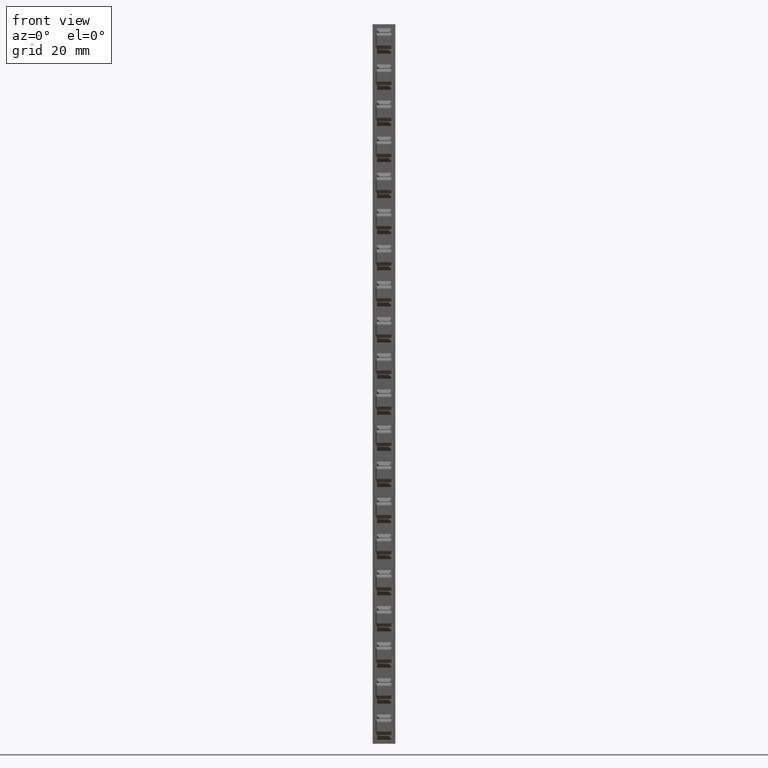
[diagram: clean part render]
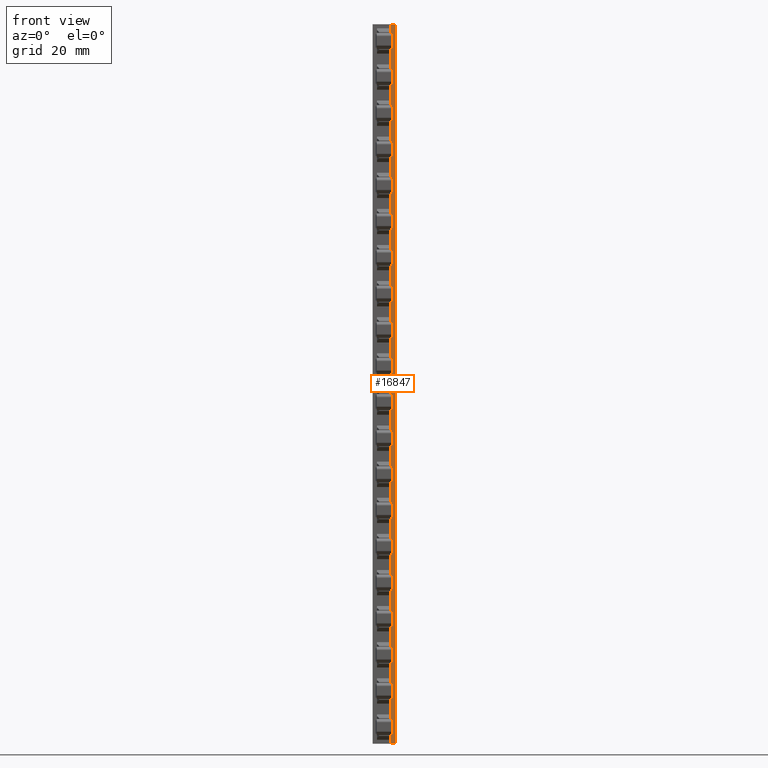
[diagram: same view with one face highlighted and labeled with its STEP entity id]
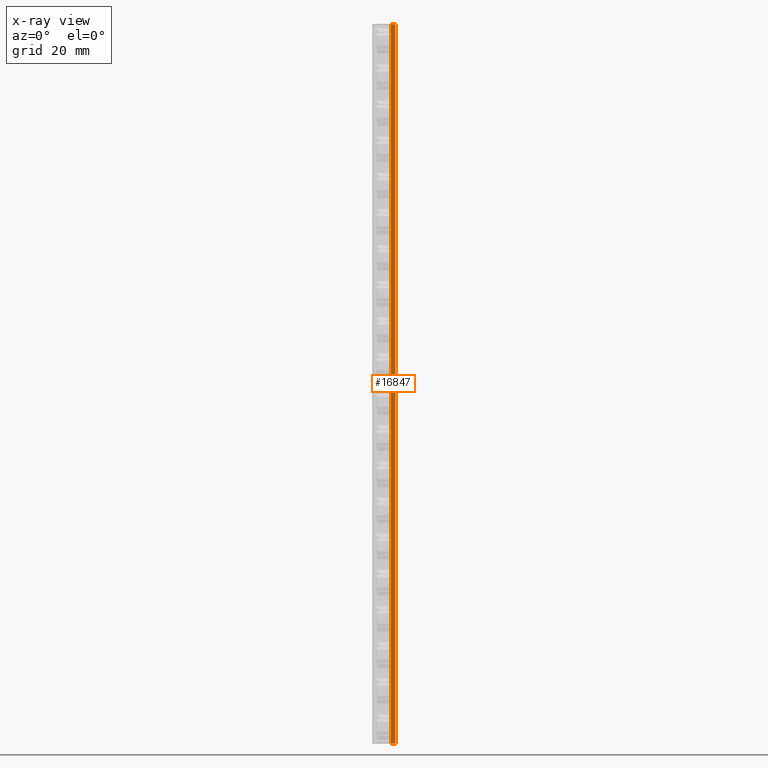
[diagram: x-ray of the same camera — body ghosted, the highlighted face saturated]
A machine part, front view. The second image highlights one B-rep face of the part: STEP entity #16847.
The next image is the same camera in x-ray: the body ghosted, the highlighted face saturated — about 5% of this face is hidden behind the body in this view.
In plain terms, the highlighted planar face has unit normal (0, 1, -0).
Its self-contained STEP definition (entity closure, byte-faithful):
#111 = VECTOR ( 'NONE', #23245, 1000.000000000000000 ) ;
#253 = VECTOR ( 'NONE', #23611, 1000.000000000000200 ) ;
#307 = VECTOR ( 'NONE', #13286, 1000.000000000000000 ) ;
#346 = AXIS2_PLACEMENT_3D ( 'NONE', #12009, #12010, #12029 ) ;
#2130 = VECTOR ( 'NONE', #3078, 1000.000000000000000 ) ;
#3078 = DIRECTION ( 'NONE',  ( -4.994244471989924700E-019, -5.266048632863696100E-014, -1.000000000000000000 ) ) ;
#3099 = CARTESIAN_POINT ( 'NONE',  ( 1394.182427990817400, 1076.657091196431100, -38.31585598421686700 ) ) ;
#3111 = LINE ( 'NONE', #3099, #2130 ) ;
#7126 = EDGE_CURVE ( 'NONE', #8283, #8245, #3111, .T. ) ;
#7421 = EDGE_CURVE ( 'NONE', #12733, #12715, #23243, .T. ) ;
#7549 = EDGE_CURVE ( 'NONE', #8245, #12733, #23630, .T. ) ;
#7584 = EDGE_CURVE ( 'NONE', #8283, #12715, #13308, .T. ) ;
#8245 = VERTEX_POINT ( 'NONE', #14064 ) ;
#8283 = VERTEX_POINT ( 'NONE', #14168 ) ;
#9594 = EDGE_LOOP ( 'NONE', ( #22202, #22328, #22318, #22325 ) ) ;
#12006 = PLANE ( 'NONE',  #346 ) ;
#12009 = CARTESIAN_POINT ( 'NONE',  ( 1393.928838836605800, 1076.657093601433900, -38.31585598421686700 ) ) ;
#12010 = DIRECTION ( 'NONE',  ( 9.483855577349523100E-006, 0.9999999999550283100, -5.266048633100520300E-014 ) ) ;
#12029 = DIRECTION ( 'NONE',  ( -0.9999999999550282000, 9.483855577349521400E-006, 0.0000000000000000000 ) ) ;
#12037 = FACE_OUTER_BOUND ( 'NONE', #9594, .T. ) ;
#12715 = VERTEX_POINT ( 'NONE', #14517 ) ;
#12733 = VERTEX_POINT ( 'NONE', #14500 ) ;
#13286 = DIRECTION ( 'NONE',  ( -0.9999999999550282000, 9.483855645241478800E-006, -1.714874837315600700E-015 ) ) ;
#13308 = LINE ( 'NONE', #13313, #307 ) ;
#13313 = CARTESIAN_POINT ( 'NONE',  ( 1393.382427990852200, 1076.657098783515500, 9.800000000002386400 ) ) ;
#14064 = CARTESIAN_POINT ( 'NONE',  ( 1394.182427990817400, 1076.657091196394000, -123.6999999999424100 ) ) ;
#14168 = CARTESIAN_POINT ( 'NONE',  ( 1394.182427990817400, 1076.657091196431100, 9.800000000002389900 ) ) ;
#14500 = CARTESIAN_POINT ( 'NONE',  ( 1393.382427990852000, 1076.657098783478400, -123.6999999999424100 ) ) ;
#14517 = CARTESIAN_POINT ( 'NONE',  ( 1393.382427990852200, 1076.657098783515500, 9.800000000002386400 ) ) ;
#16847 = ADVANCED_FACE ( 'NONE', ( #12037 ), #12006, .F. ) ;
#22202 = ORIENTED_EDGE ( 'NONE', *, *, #7584, .T. ) ;
#22318 = ORIENTED_EDGE ( 'NONE', *, *, #7549, .F. ) ;
#22325 = ORIENTED_EDGE ( 'NONE', *, *, #7126, .F. ) ;
#22328 = ORIENTED_EDGE ( 'NONE', *, *, #7421, .F. ) ;
#23243 = LINE ( 'NONE', #23244, #111 ) ;
#23244 = CARTESIAN_POINT ( 'NONE',  ( 1393.382427990852200, 1076.657098783514800, -50.53084736897823600 ) ) ;
#23245 = DIRECTION ( 'NONE',  ( -1.714375413516005400E-015, 5.266050259226226300E-014, 1.000000000000000000 ) ) ;
#23610 = CARTESIAN_POINT ( 'NONE',  ( 1412.087152898683600, 1076.656921390568900, -123.6999999999423800 ) ) ;
#23611 = DIRECTION ( 'NONE',  ( -0.9999999999550282000, 9.483855577349521400E-006, -1.714874837315600700E-015 ) ) ;
#23630 = LINE ( 'NONE', #23610, #253 ) ;